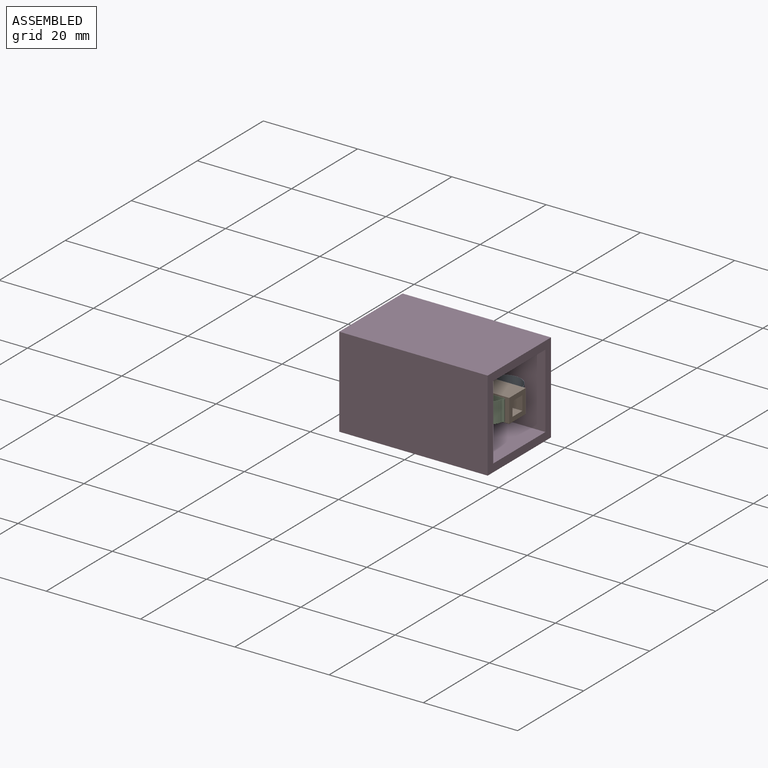
[diagram: assembled view]
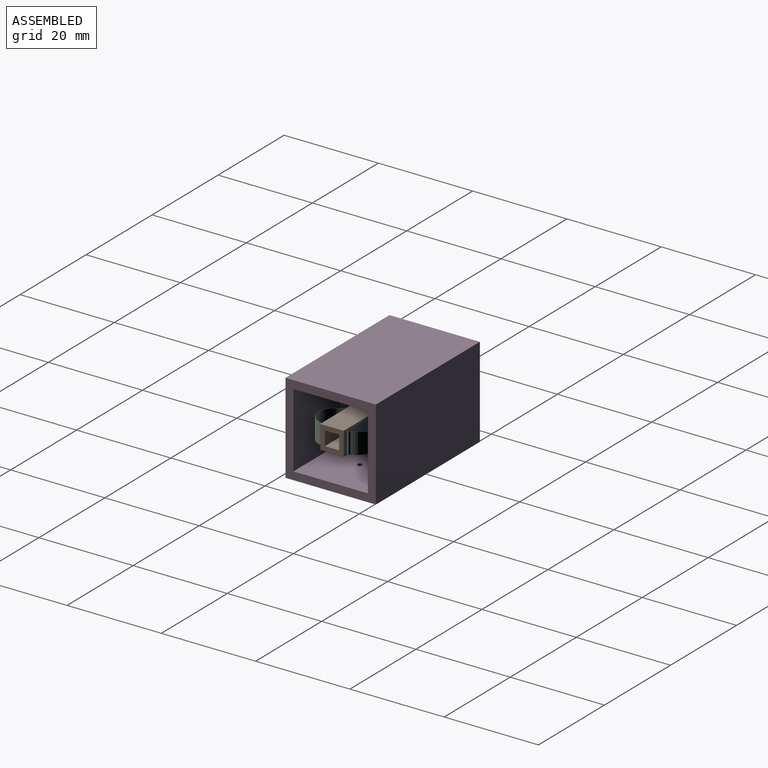
[diagram: assembled view, second angle]
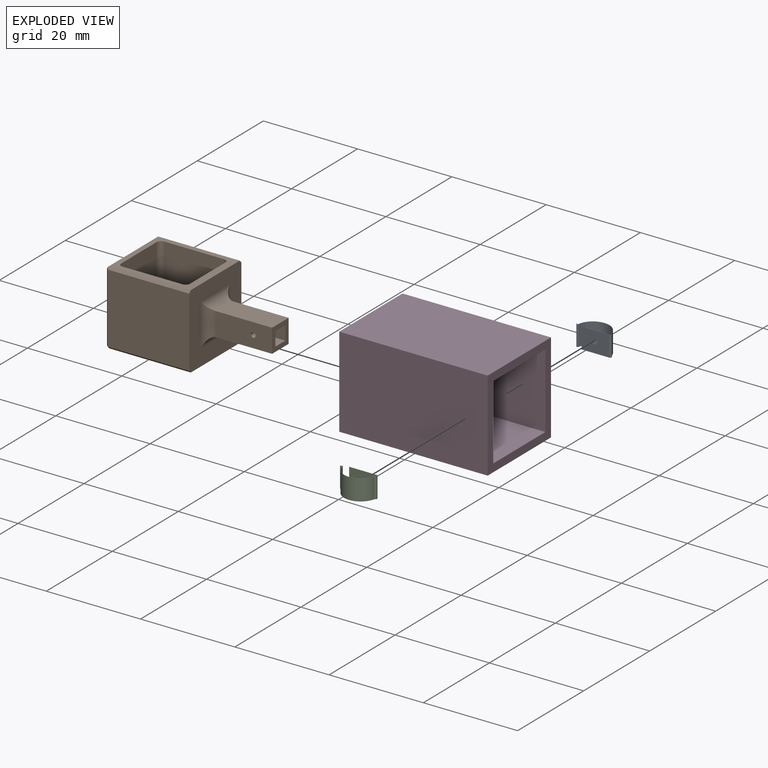
[diagram: exploded view]
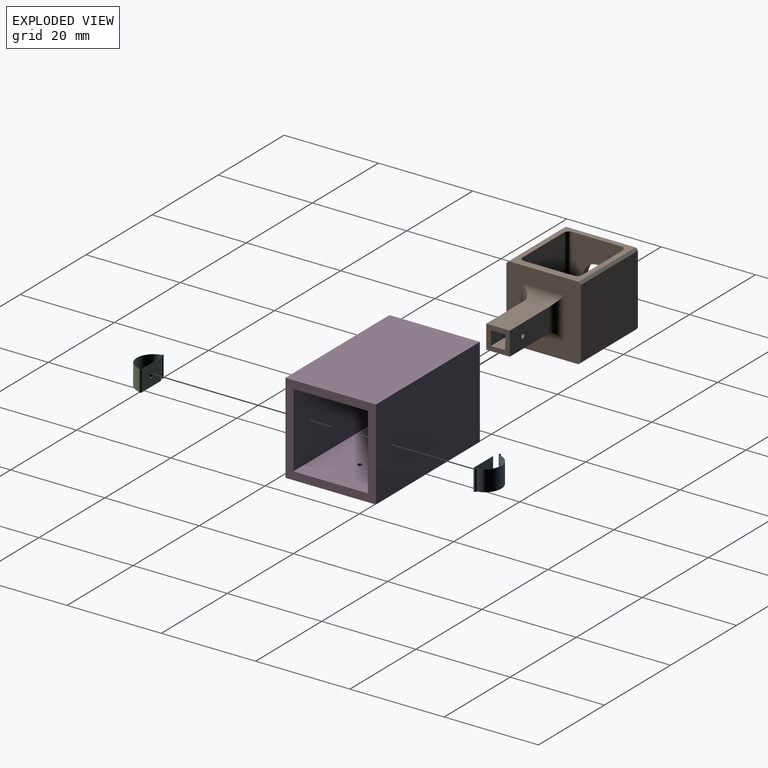
[diagram: exploded view, second angle]
ASSEMBLY  parts=4 mates=3
PART A: 13 faces, bbox 7.7x3.5x4.4 mm
  f0: cylinder r=3.51mm len=6.88mm, axis (0,0,-1), area 42.4mm2, adj f1,f9,f10,f11
  f1: cylinder r=0.34mm len=4.4mm, axis (0,0,-1), area 4.6mm2, adj f0,f2,f10,f11
  f2: plane 5.8x4.4mm, normal (0,-1,0), area 24.7mm2, adj f1,f3,f10,f11,f12
  f3: plane 4.4x0.04mm, normal (1,0,0), area 0.2mm2, adj f2,f4,f10,f11
  f4: plane 5.8x4.4mm, normal (0,1,0), area 24.7mm2, adj f3,f5,f10,f11,f12
  f5: cylinder r=0.3mm len=4.4mm, axis (0,0,-1), area 4.1mm2, adj f4,f6,f10,f11
  f6: cylinder r=3.47mm len=6.8mm, axis (0,0,-1), area 42mm2, adj f5,f7,f10,f11
  f7: cylinder r=0.26mm len=4.4mm, axis (0,0,-1), area 3.6mm2, adj f6,f8,f10,f11
  f8: plane 4.4x0.04mm, normal (-0.02,1,0), area 0.2mm2, adj f7,f9,f10,f11
  f9: cylinder r=0.22mm len=4.4mm, axis (0,0,-1), area 3mm2, adj f0,f8,f10,f11
  f10: plane 7.66x3.48mm, normal (0,0,1), area 0.7mm2, adj f0,f1,f2,f3,f4,f5,f6,f7
  f11: plane 7.66x3.48mm, normal (0,0,-1), area 0.7mm2, adj f0,f1,f2,f3,f4,f5,f6,f7
  f12: cylinder r=0.5mm len=1mm, axis (0,-1,0), area 0.1mm2, adj f2,f4
PART B: 55 faces, bbox 15.8x15.8x31.6 mm
  f0: plane 5x5mm, normal (0,0,1), area 16mm2, adj f9,f10,f11,f12,f48,f49,f50,f51
  f1: plane 13.2x10.6mm, normal (0,0,-1), area 130.9mm2, adj f3,f26,f32,f35,f48,f49,f50,f51
  f2: cylinder r=1.5mm len=3mm, axis (0,-1,0), area 5.7mm2, adj f14,f23
  f3: plane 17.3x14.8mm, normal (0,1,0), area 72.9mm2, adj f1,f7,f13,f15,f16,f24,f26,f29
  f4: plane 17.3x14.8mm, normal (-1,0,0), area 256mm2, adj f7,f36,f41,f42
  f5: plane 17.3x14.8mm, normal (0,-1,0), area 243.5mm2, adj f7,f22,f42,f43,f47
  f6: plane 17.3x14.8mm, normal (1,0,0), area 256mm2, adj f7,f37,f43,f44
  f7: plane 15.8x15.8mm, normal (0,0,1), area 168.1mm2, adj f3,f4,f5,f6,f18,f19,f20,f21
  f8: plane 14.8x14.8mm, normal (0,0,-1), area 190.8mm2, adj f17,f38,f41,f44,f47
  f9: plane 11.8x5mm, normal (1,0,0), area 58.2mm2, adj f0,f10,f12,f20,f52
  f10: plane 11.8x5mm, normal (0,-1,0), area 58.2mm2, adj f0,f9,f11,f21,f54
  f11: plane 11.8x5mm, normal (-1,0,0), area 58.2mm2, adj f0,f10,f12,f19,f53
  f12: plane 11.8x5mm, normal (0,1,0), area 59mm2, adj f0,f9,f11,f18
  f13: plane 13.2x12.6mm, normal (1,0,0), area 166.3mm2, adj f3,f24,f26,f27
  f14: plane 12.6x10.6mm, normal (0,1,0), area 126.5mm2, adj f2,f27,f28,f32,f33
  f15: plane 13.2x12.6mm, normal (-1,0,0), area 166.3mm2, adj f3,f29,f33,f35
  f16: plane 13.2x10.6mm, normal (0,0,1), area 111.6mm2, adj f3,f17,f24,f28,f29
  f17: cylinder r=3mm len=6mm, axis (0,0,-1), area 30.2mm2, adj f8,f16
  f18: cylinder r=2mm len=9mm, axis (-1,0,0), area 20.3mm2, adj f7,f12,f19,f20
  f19: cylinder r=2mm len=9mm, axis (0,-1,0), area 20.3mm2, adj f7,f11,f18,f21
  f20: cylinder r=2mm len=9mm, axis (0,1,0), area 20.3mm2, adj f7,f9,f18,f21
  f21: cylinder r=2mm len=9mm, axis (1,0,0), area 20.3mm2, adj f7,f10,f19,f20
  f22: cylinder r=2mm len=4mm, axis (0,-1,0), area 12.6mm2, adj f5,f23
  f23: plane 4x4mm, normal (0,-1,0), area 5.5mm2, adj f2,f22
  f24: cylinder r=1mm len=13.2mm, axis (0,1,0), area 20.7mm2, adj f3,f13,f16,f25
  f25: sphere r=1mm, area 1.6mm2, adj f24,f27,f28
  f26: cylinder r=1mm len=13.2mm, axis (0,-1,0), area 20.7mm2, adj f1,f3,f13,f30
  f27: cylinder r=1mm len=12.6mm, axis (0,0,1), area 19.8mm2, adj f13,f14,f25,f30
  f28: cylinder r=1mm len=10.6mm, axis (-1,0,0), area 16.7mm2, adj f14,f16,f25,f31
  f29: cylinder r=1mm len=13.2mm, axis (0,-1,0), area 20.7mm2, adj f3,f15,f16,f31
  f30: sphere r=1mm, area 1.6mm2, adj f26,f27,f32
  f31: sphere r=1mm, area 1.6mm2, adj f28,f29,f33
  f32: cylinder r=1mm len=10.6mm, axis (1,0,0), area 16.7mm2, adj f1,f14,f30,f34
  f33: cylinder r=1mm len=12.6mm, axis (0,0,-1), area 19.8mm2, adj f14,f15,f31,f34
  f34: sphere r=1mm, area 1.6mm2, adj f32,f33,f35
  f35: cylinder r=1mm len=13.2mm, axis (0,1,0), area 20.7mm2, adj f1,f3,f15,f34
  f36: plane 17.3x0.5mm, normal (-0.71,0.71,0), area 12.2mm2, adj f3,f4,f7,f39
  f37: plane 17.3x0.5mm, normal (0.71,0.71,0), area 12.2mm2, adj f3,f6,f7,f40
  f38: plane 14.8x0.5mm, normal (0,0.71,-0.71), area 10.5mm2, adj f3,f8,f39,f40
  f39: plane 0.5x0.5mm, normal (-0.58,0.58,-0.58), area 0.2mm2, adj f36,f38,f41
  f40: plane 0.5x0.5mm, normal (0.58,0.58,-0.58), area 0.2mm2, adj f37,f38,f44
  f41: plane 14.8x0.5mm, normal (-0.71,0,-0.71), area 10.5mm2, adj f4,f8,f39,f45
  f42: plane 17.3x0.5mm, normal (-0.71,-0.71,0), area 12.2mm2, adj f4,f5,f7,f45
  f43: plane 17.3x0.5mm, normal (0.71,-0.71,0), area 12.2mm2, adj f5,f6,f7,f46
  f44: plane 14.8x0.5mm, normal (0.71,0,-0.71), area 10.5mm2, adj f6,f8,f40,f46
  f45: plane 0.5x0.5mm, normal (-0.58,-0.58,-0.58), area 0.2mm2, adj f41,f42,f47
  f46: plane 0.5x0.5mm, normal (0.58,-0.58,-0.58), area 0.2mm2, adj f43,f44,f47
  f47: plane 14.8x0.5mm, normal (0,-0.71,-0.71), area 10.5mm2, adj f5,f8,f45,f46
  f48: plane 15.4x3mm, normal (0,-1,0), area 46.2mm2, adj f0,f1,f49,f51
  f49: plane 15.4x3mm, normal (1,0,0), area 45.4mm2, adj f0,f1,f48,f50,f53
  f50: plane 15.4x3mm, normal (0,1,0), area 45.4mm2, adj f0,f1,f49,f51,f54
  f51: plane 15.4x3mm, normal (-1,0,0), area 45.4mm2, adj f0,f1,f48,f50,f52
  f52: cylinder r=0.5mm len=1mm, axis (1,0,0), area 3.1mm2, adj f9,f51
  f53: cylinder r=0.5mm len=1mm, axis (1,0,0), area 3.1mm2, adj f11,f49
  f54: cylinder r=0.5mm len=1mm, axis (0,-1,0), area 3.1mm2, adj f10,f50
PART C: same geometry as A
PART D: 12 faces, bbox 19.2x19.2x31.5 mm
  f0: plane 19.18x19.18mm, normal (0,0,1), area 118.2mm2, adj f2,f3,f4,f5,f6,f7,f8,f9
  f1: plane 19.18x19.18mm, normal (0,0,-1), area 118.2mm2, adj f2,f3,f4,f5,f6,f7,f8,f9
  f2: plane 31.5x19.18mm, normal (0,1,0), area 604.2mm2, adj f0,f1,f3,f5
  f3: plane 31.5x19.18mm, normal (-1,0,0), area 604.2mm2, adj f0,f1,f2,f4
  f4: plane 31.5x19.18mm, normal (0,-1,0), area 602.6mm2, adj f0,f1,f3,f5,f10,f11
  f5: plane 31.5x19.18mm, normal (1,0,0), area 604.2mm2, adj f0,f1,f2,f4
  f6: plane 31.5x15.8mm, normal (0,-1,0), area 497.7mm2, adj f0,f1,f7,f9
  f7: plane 31.5x15.8mm, normal (1,0,0), area 497.7mm2, adj f0,f1,f6,f8
  f8: plane 31.5x15.8mm, normal (0,1,0), area 496.1mm2, adj f0,f1,f7,f9,f10,f11
  f9: plane 31.5x15.8mm, normal (-1,0,0), area 497.7mm2, adj f0,f1,f6,f8
  f10: cylinder r=0.5mm len=1.69mm, axis (0,-1,0), area 5.3mm2, adj f4,f8
  f11: cylinder r=0.5mm len=1.69mm, axis (0,-1,0), area 5.3mm2, adj f4,f8
PLACE A rot(axis=(0,1,0),180deg) t=(-100.19,2.53,-0.89)mm
PLACE B rot(axis=(0.58,0.58,0.58),120deg) t=(-75.62,-8.62,-3.09)mm fixed
PLACE C rot(axis=(0,0,-1),180deg) t=(-100.19,-19.78,-5.29)mm
PLACE D rot(axis=(0.58,-0.58,-0.58),120deg) t=(-43.62,-58.02,51.11)mm
MATE slider B.f17 <-> D.f1  axis (-1,0,0) through (-75.62,-8.62,-3.09)mm
MATE fastened B.f52 <-> A.f12  axis (0,1,0) through (-48.02,-6.12,-3.09)mm
MATE fastened B.f52 <-> C.f12  axis (0,-1,0) through (-48.02,-11.12,-3.09)mm
